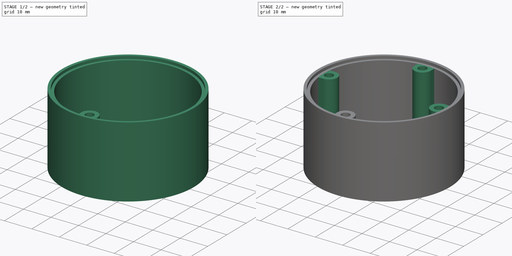
[diagram: build sequence overview — one tinted view per stage of 2, left to right]
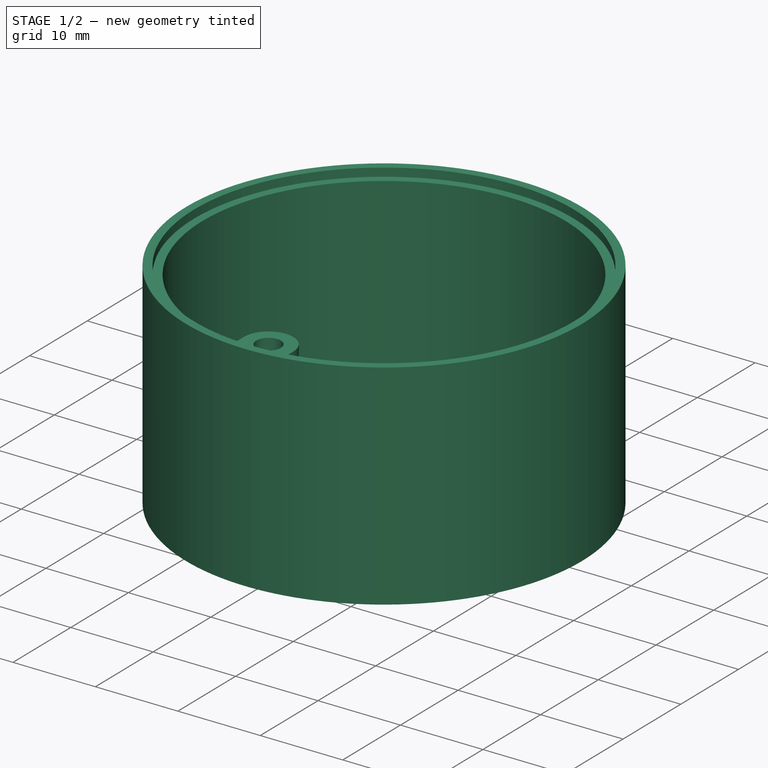
[diagram: stage 1 of 2 — iso view after this stage's code; geometry added in this stage tinted green]
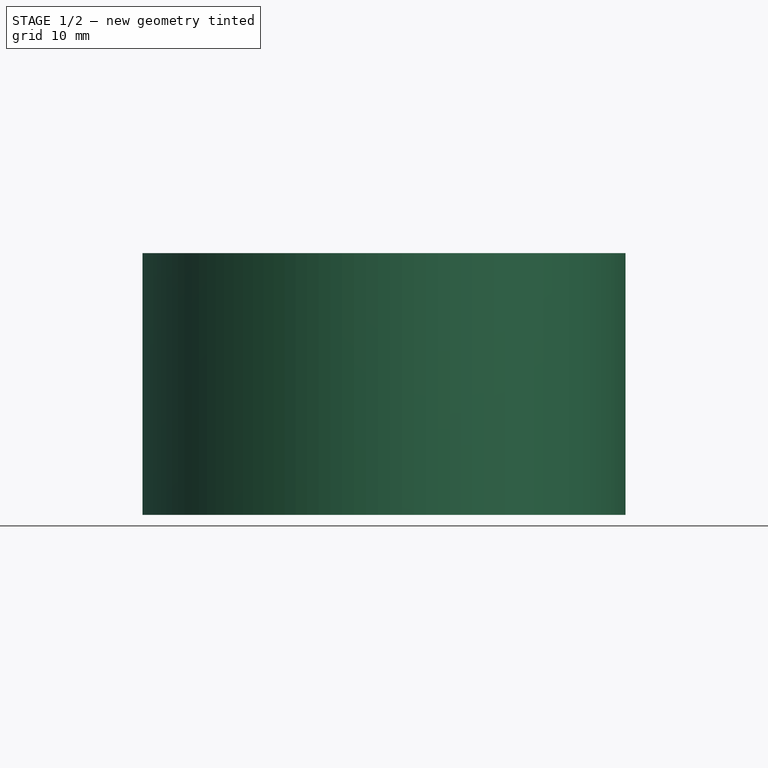
[diagram: stage 1 of 2 — front view after this stage's code; geometry added in this stage tinted green]
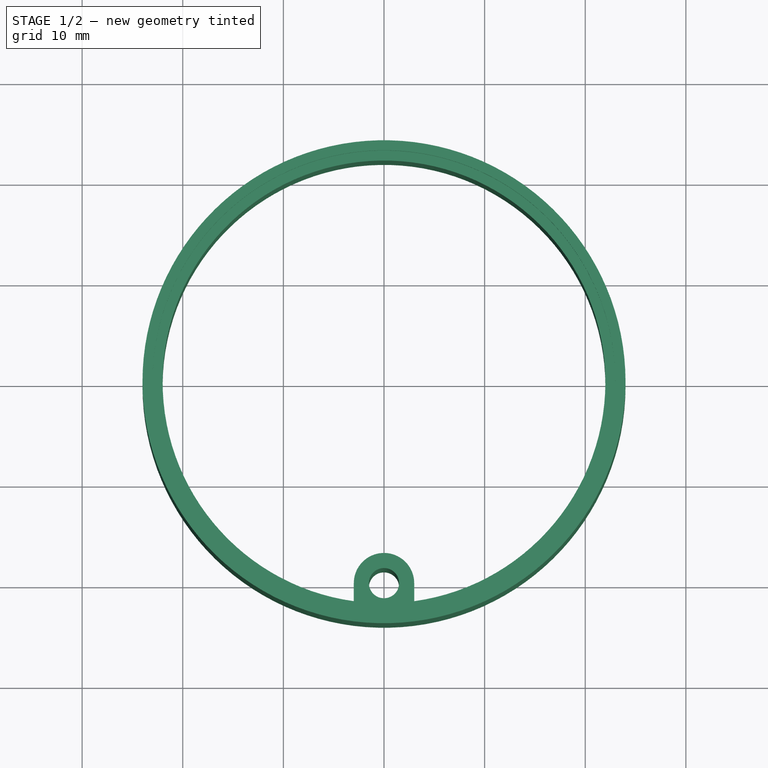
[diagram: stage 1 of 2 — top view after this stage's code; geometry added in this stage tinted green]
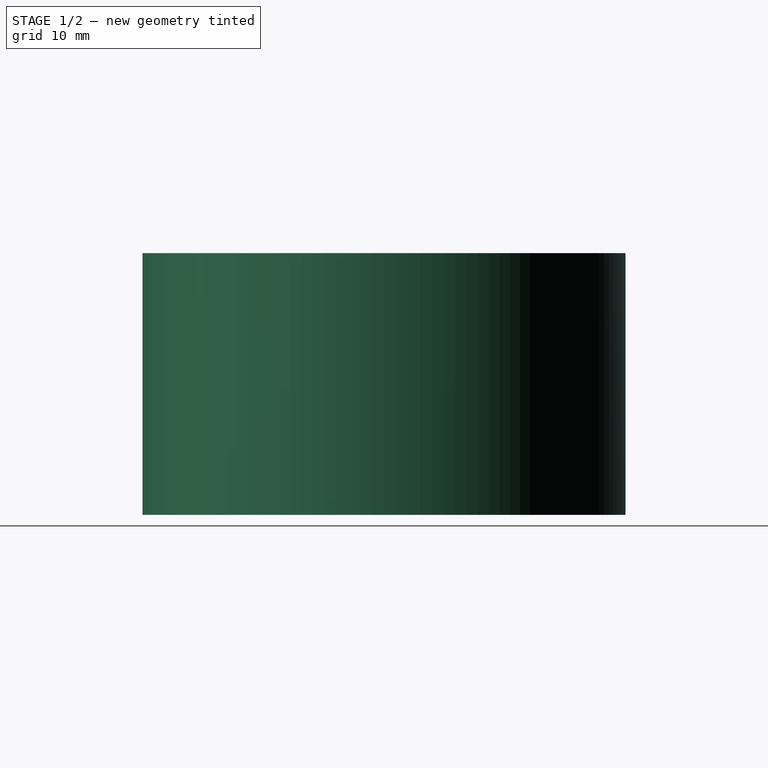
[diagram: stage 1 of 2 — right view after this stage's code; geometry added in this stage tinted green]
FCSTD DOCUMENT  (FreeCAD 0.16RUnknown)
Label: body
License: All rights reserved
LicenseURL: http://en.wikipedia.org/wiki/All_rights_reserved
objects: Sketcher::SketchObject×2, PartDesign::Revolution×1, PartDesign::Pad×1, PartDesign::PolarPattern×1
note: 7 computed .brp shape members not serialized (recipe doc carries the construction recipe); baked Part::Feature solids carry a one-line shape summary decoded from their .brp

FEATURE [Sketcher::SketchObject] Sketch
  Placement = pos=(0,0,0) rot=(1,0,0;1.5708rad)
  sketch-geometry (6):
    g0: LineSegment StartX=24 StartY=0 StartZ=0 EndX=24 EndY=26 EndZ=0
    g1: LineSegment StartX=24 StartY=26 StartZ=0 EndX=23 EndY=26 EndZ=0
    g2: LineSegment StartX=23 StartY=26 StartZ=0 EndX=23 EndY=25 EndZ=0
    g3: LineSegment StartX=23 StartY=25 StartZ=0 EndX=22 EndY=25 EndZ=0
    g4: LineSegment StartX=22 StartY=25 StartZ=0 EndX=22 EndY=0 EndZ=0
    g5: LineSegment StartX=22 StartY=0 StartZ=0 EndX=24 EndY=0 EndZ=0
  constraints (18):
    c: PointOnObject(g0,g-1)
    c: Vertical(g0)
    c: Coincident(g0,g1)
    c: Horizontal(g1)
    c: Coincident(g1,g2)
    c: Vertical(g2)
    c: Coincident(g2,g3)
    c: Horizontal(g3)
    c: Coincident(g3,g4)
    c: Vertical(g4)
    c: DistanceX(g1) = -1
    c: DistanceY(g2) = -1
    c: DistanceX(g-1,g0) = 24
    c: DistanceY(g0,g2) = 25
    c: Coincident(g5,g0)
    c: Horizontal(g5)
    c: DistanceX(g4,g0) = 2
    c: Coincident(g4,g5)
FEATURE [PartDesign::Revolution] Revolution
  Angle = 360
  Axis = (0,0,1)
  Base = (0,0,0)
  Placement = pos=(0,0,0) rot=(1,0,0;1.5708rad)
  ReferenceAxis = -> Sketch [V_Axis]
  Reversed = true
  Sketch = -> Sketch
FEATURE [Sketcher::SketchObject] Sketch002
  ExternalGeometry = -> [Revolution]
  Placement = pos=(0,0,25) rot=(0,0,1;3.14159rad)
  Support = -> Revolution [Face4]
  sketch-geometry (8):
    g0: LineSegment StartX=-3 StartY=22 StartZ=0 EndX=-3 EndY=20 EndZ=0
    g1: LineSegment [constr] StartX=-3 StartY=20 StartZ=0 EndX=3 EndY=20 EndZ=0
    g2: LineSegment StartX=3 StartY=20 StartZ=0 EndX=3 EndY=22 EndZ=0
    g3: GeomPoint [constr] X=0 Y=20 Z=0
    g4: ArcOfCircle CenterX=0 CenterY=20 CenterZ=0 NormalX=0 NormalY=0 NormalZ=1 Radius=3 StartAngle=3.14159 EndAngle=6.28319
    g5: LineSegment StartX=-3 StartY=22 StartZ=0 EndX=3 EndY=22 EndZ=0
    g6: GeomPoint [constr] X=0 Y=22 Z=0
    g7: Circle CenterX=0 CenterY=20 CenterZ=0 NormalX=0 NormalY=0 NormalZ=1 Radius=1.5
  constraints (20):
    c: Coincident(g0,g1)
    c: Horizontal(g1)
    c: Coincident(g1,g2)
    c: Vertical(g2)
    c: Vertical(g0)
    c: PointOnObject(g3,g1)
    c: PointOnObject(g3,g-2)
    c: Coincident(g4,g3)
    c: Coincident(g4,g1)
    c: Coincident(g4,g0)
    c: DistanceX(g1,g0) = -6
    c: DistanceY(g2) = 2
    c: Coincident(g5,g0)
    c: Coincident(g5,g2)
    c: PointOnObject(g6,g-3)
    c: PointOnObject(g6,g-2)
    c: PointOnObject(g6,g5)
    c: Equal(g0,g2)
    c: Coincident(g7,g3)
    c: Radius(g7) = 1.5
FEATURE [PartDesign::Pad] Pad
  Length = 25
  Length2 = 100
  Placement = pos=(0,0,0) rot=(1,0,0;1.5708rad)
  Reversed = true
  Sketch = -> Sketch002
  Type = 0
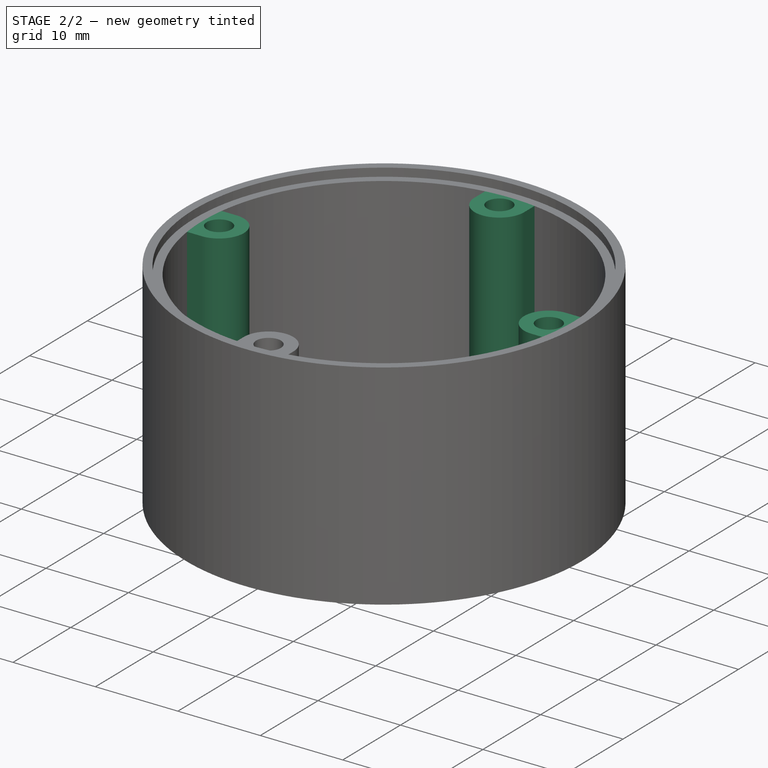
[diagram: stage 2 of 2 — iso view after this stage's code; geometry added in this stage tinted green]
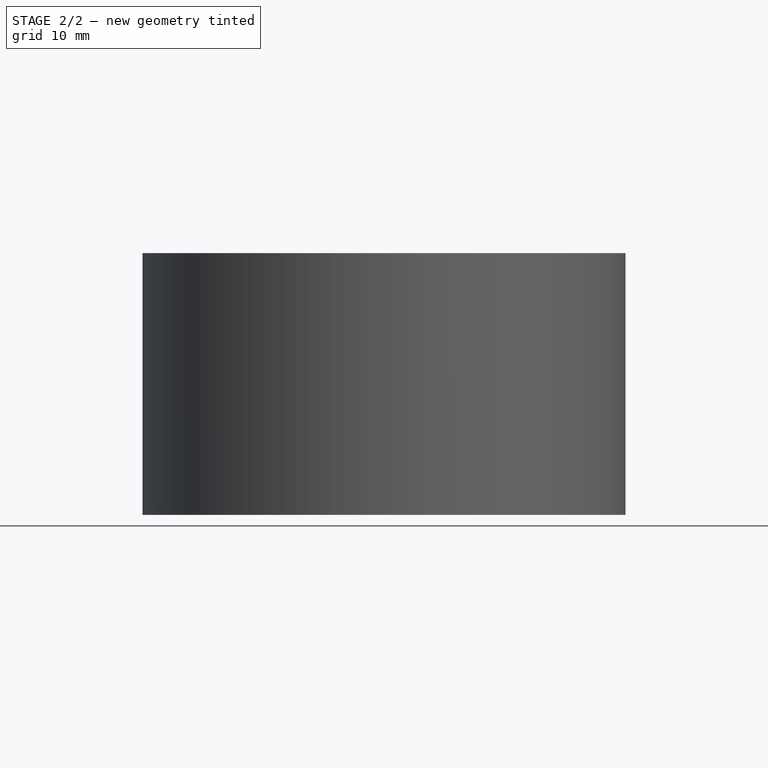
[diagram: stage 2 of 2 — front view after this stage's code; geometry added in this stage tinted green]
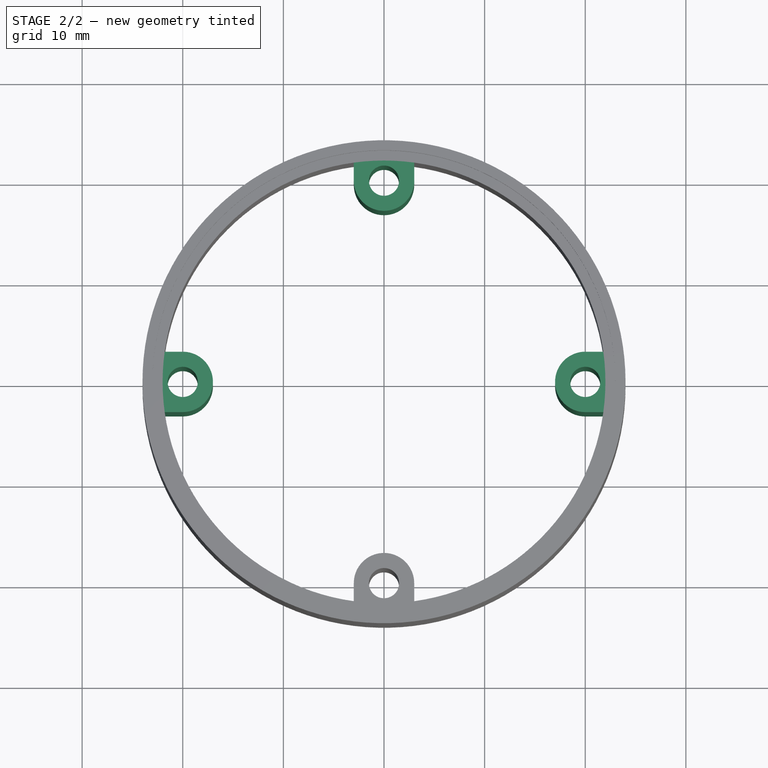
[diagram: stage 2 of 2 — top view after this stage's code; geometry added in this stage tinted green]
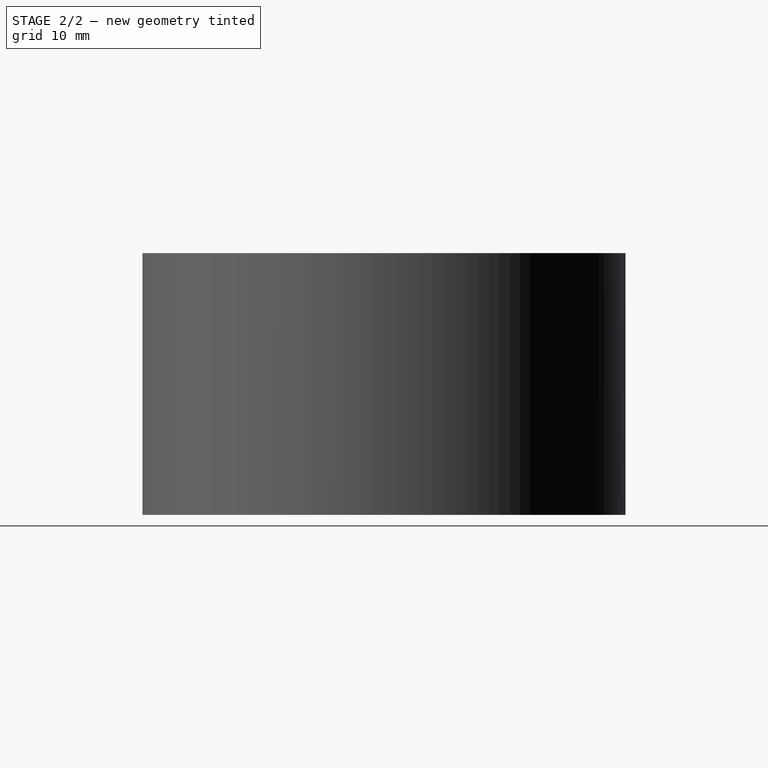
[diagram: stage 2 of 2 — right view after this stage's code; geometry added in this stage tinted green]
FEATURE [PartDesign::PolarPattern] PolarPattern
  Angle = 360
  Axis = -> Sketch002 [N_Axis]
  Occurrences = 4
  Originals = -> [Pad]
  Placement = pos=(0,0,0) rot=(1,0,0;1.5708rad)
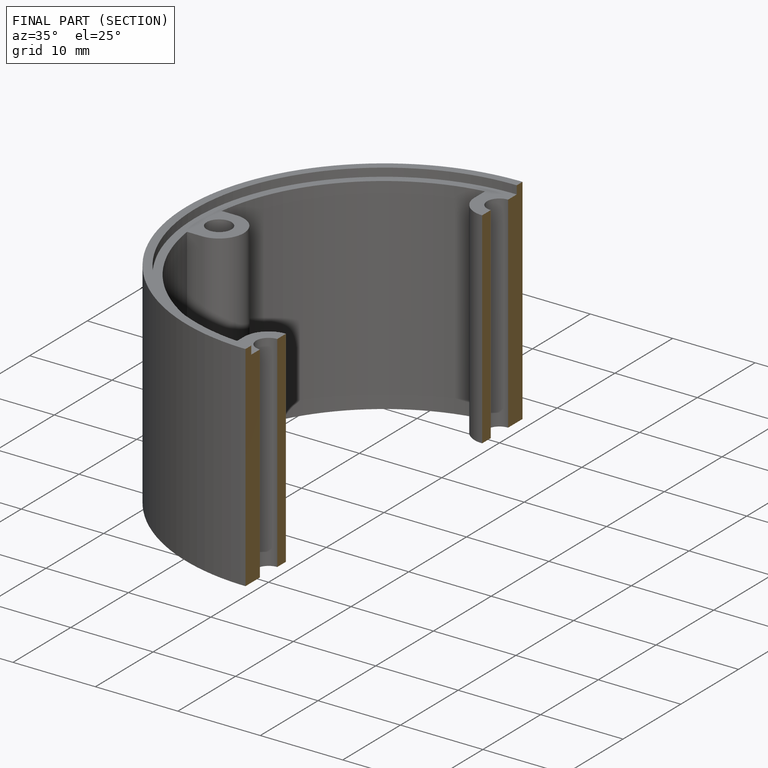
[diagram: finished part — half-section view (interior)]
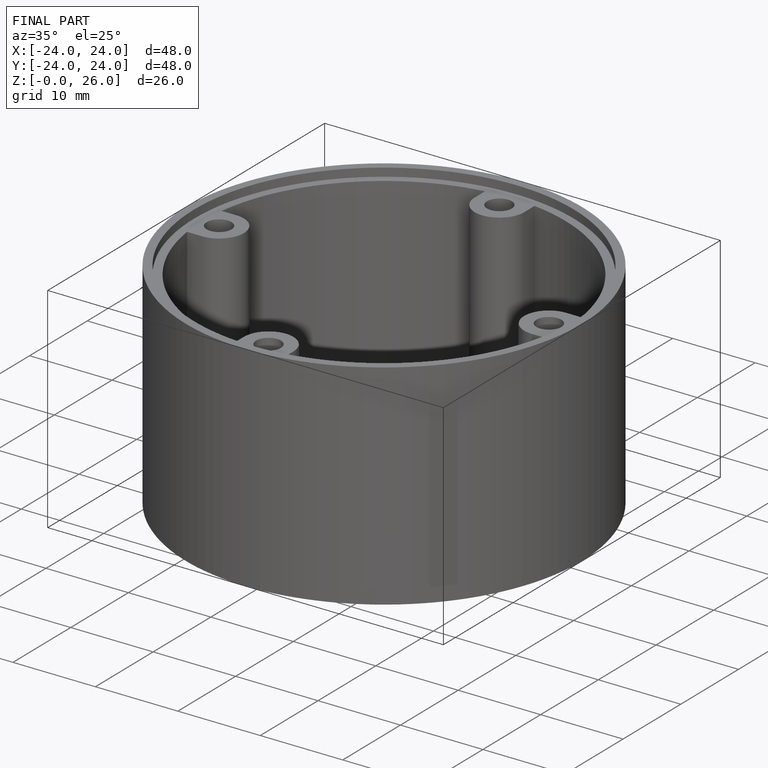
[diagram: finished part — iso view with bounding-box wireframe]
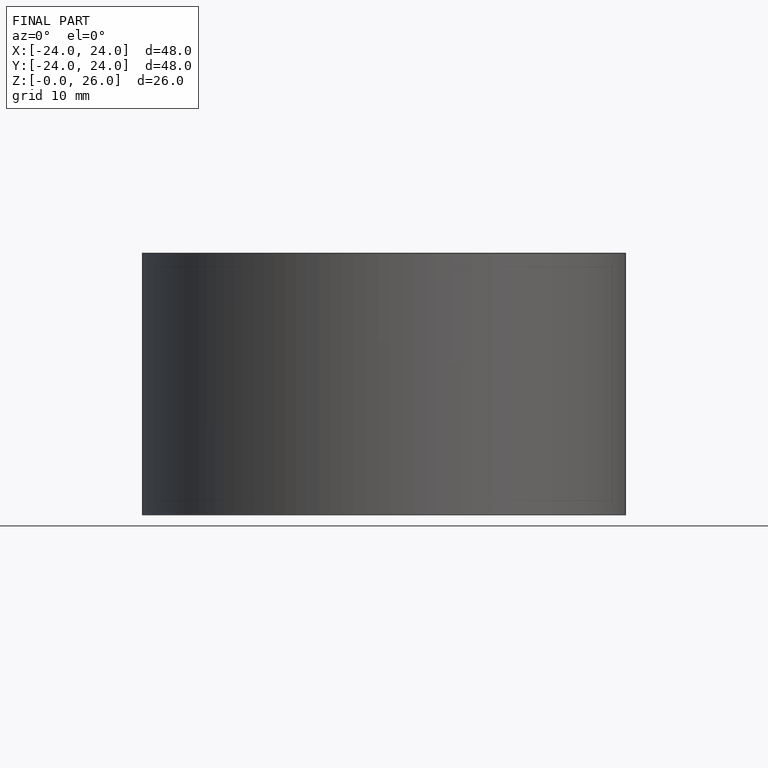
[diagram: finished part — front view with bounding-box wireframe]
